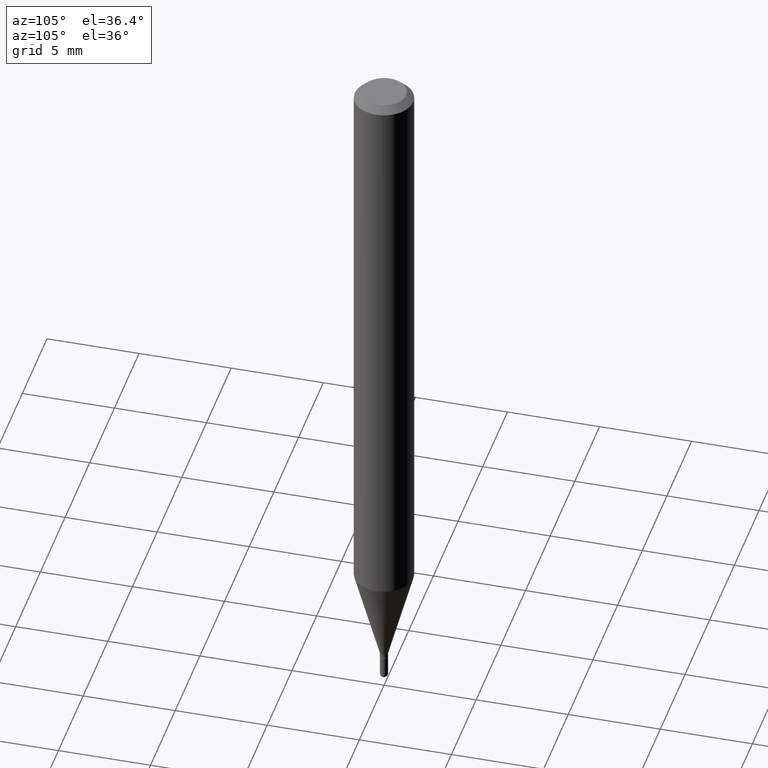
[diagram: clean part render]
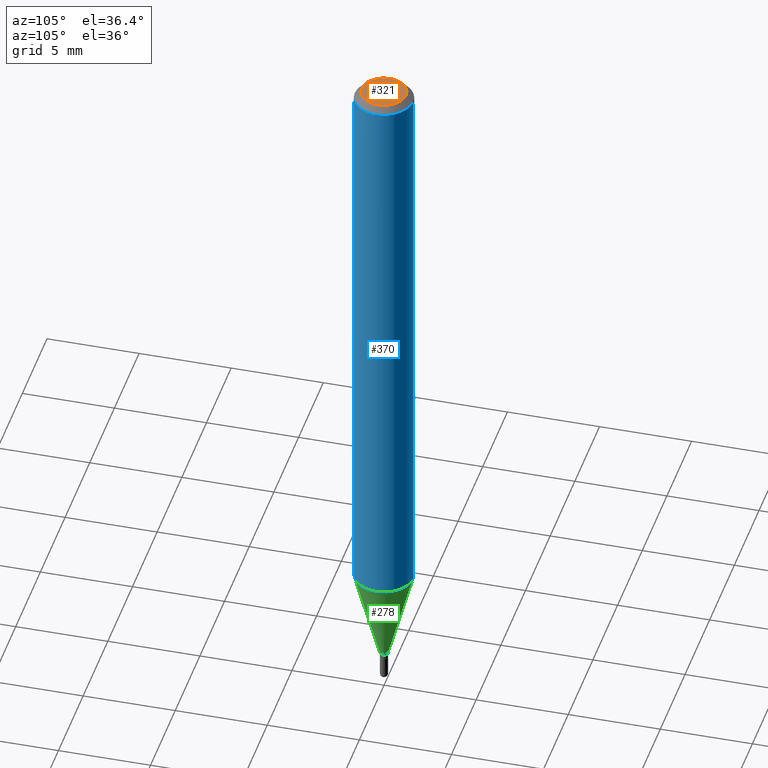
[diagram: same view with three faces highlighted in distinct colors, each labeled with its STEP entity id]
A machine part, auxiliary view with three faces highlighted in distinct colors.
Their STEP definitions:

[orange] entity #321 — the highlighted planar face has unit normal (0, -0, -1).
#18 = AXIS2_PLACEMENT_3D ( 'NONE', #292, #449, #201 ) ;
#79 = EDGE_CURVE ( 'NONE', #347, #496, #219, .T. ) ;
#85 = PLANE ( 'NONE',  #18 ) ;
#99 = EDGE_LOOP ( 'NONE', ( #424, #168 ) ) ;
#101 = CARTESIAN_POINT ( 'NONE',  ( -3.773273898774340269E-16, -0.04749999999999999362, 1.569853956734031529E-16 ) ) ;
#108 = AXIS2_PLACEMENT_3D ( 'NONE', #248, #151, #475 ) ;
#123 = CARTESIAN_POINT ( 'NONE',  ( 3.840629472727447874E-16, 0.04749999999999999362, -1.747056831868805383E-16 ) ) ;
#127 = DIRECTION ( 'NONE',  ( -6.982962677686266711E-15, -1.000000000000000000, 3.491485040634565991E-15 ) ) ;
#151 = DIRECTION ( 'NONE',  ( -2.445466221238004256E-29, 3.491485040634565202E-15, 1.000000000000000000 ) ) ;
#168 = ORIENTED_EDGE ( 'NONE', *, *, #269, .T. ) ;
#201 = DIRECTION ( 'NONE',  ( 6.982962677686265922E-15, 1.000000000000000000, -3.491485040634565202E-15 ) ) ;
#219 = CIRCLE ( 'NONE', #108, 0.04749999999999999362 ) ;
#248 = CARTESIAN_POINT ( 'NONE',  ( 2.166718227241722488E-46, -3.093505938452482388E-32, -8.860143756738675731E-18 ) ) ;
#269 = EDGE_CURVE ( 'NONE', #496, #347, #480, .T. ) ;
#292 = CARTESIAN_POINT ( 'NONE',  ( 3.316907271900976096E-16, 0.04749999999999999362, -1.702756113085111488E-16 ) ) ;
#317 = AXIS2_PLACEMENT_3D ( 'NONE', #369, #364, #127 ) ;
#321 = ADVANCED_FACE ( 'NONE', ( #328 ), #85, .F. ) ;
#328 = FACE_OUTER_BOUND ( 'NONE', #99, .T. ) ;
#347 = VERTEX_POINT ( 'NONE', #123 ) ;
#364 = DIRECTION ( 'NONE',  ( -2.445466221238004256E-29, 3.491485040634565202E-15, 1.000000000000000000 ) ) ;
#369 = CARTESIAN_POINT ( 'NONE',  ( 2.166718227241722488E-46, -3.093505938452482388E-32, -8.860143756738675731E-18 ) ) ;
#424 = ORIENTED_EDGE ( 'NONE', *, *, #79, .T. ) ;
#449 = DIRECTION ( 'NONE',  ( 2.445466221238003976E-29, -3.491485040634565202E-15, -1.000000000000000000 ) ) ;
#475 = DIRECTION ( 'NONE',  ( -6.982962677686266711E-15, -1.000000000000000000, 3.491485040634565991E-15 ) ) ;
#480 = CIRCLE ( 'NONE', #317, 0.04749999999999999362 ) ;
#496 = VERTEX_POINT ( 'NONE', #101 ) ;

[blue] entity #370 — the highlighted cylindrical surface (edge-blend (fillet) strip) has radius 1.5875 mm, axis along (-0, 0, 1).
#6 = VECTOR ( 'NONE', #352, 39.37007874015748143 ) ;
#17 = EDGE_LOOP ( 'NONE', ( #333, #51, #376, #87 ) ) ;
#22 = DIRECTION ( 'NONE',  ( -6.982962677686265922E-15, -1.000000000000000000, 4.370956789862821150E-15 ) ) ;
#26 = EDGE_CURVE ( 'NONE', #489, #290, #323, .T. ) ;
#49 = CARTESIAN_POINT ( 'NONE',  ( 3.668199331857008749E-31, -5.237227560951850416E-17, -0.01500000000000000812 ) ) ;
#51 = ORIENTED_EDGE ( 'NONE', *, *, #239, .T. ) ;
#55 = FACE_OUTER_BOUND ( 'NONE', #17, .T. ) ;
#87 = ORIENTED_EDGE ( 'NONE', *, *, #166, .F. ) ;
#113 = DIRECTION ( 'NONE',  ( -2.445466221238004536E-29, 3.491485040634565202E-15, 1.000000000000000000 ) ) ;
#116 = CARTESIAN_POINT ( 'NONE',  ( -4.364351673553912750E-16, -0.06250000000000005551, -0.01499999999999979128 ) ) ;
#129 = CARTESIAN_POINT ( 'NONE',  ( 4.440892098500927901E-16, 0.06249999999999569095, -1.237469256391281691 ) ) ;
#166 = EDGE_CURVE ( 'NONE', #489, #253, #277, .T. ) ;
#195 = LINE ( 'NONE', #236, #6 ) ;
#205 = DIRECTION ( 'NONE',  ( -2.445466221238004256E-29, 3.491485040634565202E-15, 1.000000000000000000 ) ) ;
#211 = CARTESIAN_POINT ( 'NONE',  ( 3.026189266325389991E-29, -4.320605396935337558E-15, -1.237469256391281247 ) ) ;
#236 = CARTESIAN_POINT ( 'NONE',  ( 4.440892098500625669E-16, 0.06250000000000000000, -2.182178150396603251E-16 ) ) ;
#239 = EDGE_CURVE ( 'NONE', #290, #381, #195, .T. ) ;
#250 = CYLINDRICAL_SURFACE ( 'NONE', #406, 0.06250000000000000000 ) ;
#253 = VERTEX_POINT ( 'NONE', #116 ) ;
#257 = CARTESIAN_POINT ( 'NONE',  ( 4.440892098500930859E-16, 0.06249999999999995143, -0.01500000000000022669 ) ) ;
#263 = CIRCLE ( 'NONE', #276, 0.06250000000000000000 ) ;
#270 = EDGE_CURVE ( 'NONE', #253, #381, #263, .T. ) ;
#276 = AXIS2_PLACEMENT_3D ( 'NONE', #49, #286, #482 ) ;
#277 = LINE ( 'NONE', #349, #459 ) ;
#286 = DIRECTION ( 'NONE',  ( -2.445466221238004256E-29, 3.491485040634565202E-15, 1.000000000000000000 ) ) ;
#288 = AXIS2_PLACEMENT_3D ( 'NONE', #211, #335, #22 ) ;
#290 = VERTEX_POINT ( 'NONE', #129 ) ;
#323 = CIRCLE ( 'NONE', #288, 0.06250000000000000000 ) ;
#333 = ORIENTED_EDGE ( 'NONE', *, *, #26, .T. ) ;
#335 = DIRECTION ( 'NONE',  ( -2.445466221238004256E-29, 3.491485040634565202E-15, 1.000000000000000000 ) ) ;
#349 = CARTESIAN_POINT ( 'NONE',  ( -4.364351673553916201E-16, -0.06250000000000000000, 2.182178150396603251E-16 ) ) ;
#352 = DIRECTION ( 'NONE',  ( -2.445466221238004536E-29, 3.491485040634565202E-15, 1.000000000000000000 ) ) ;
#366 = DIRECTION ( 'NONE',  ( -6.982962677686265922E-15, -1.000000000000000000, 3.491485040634565202E-15 ) ) ;
#370 = ADVANCED_FACE ( 'NONE', ( #55 ), #250, .T. ) ;
#376 = ORIENTED_EDGE ( 'NONE', *, *, #270, .F. ) ;
#381 = VERTEX_POINT ( 'NONE', #257 ) ;
#406 = AXIS2_PLACEMENT_3D ( 'NONE', #408, #205, #366 ) ;
#408 = CARTESIAN_POINT ( 'NONE',  ( 0.000000000000000000, 0.000000000000000000, 0.000000000000000000 ) ) ;
#455 = CARTESIAN_POINT ( 'NONE',  ( -4.364351673553615448E-16, -0.06250000000000432987, -1.237469256391281025 ) ) ;
#459 = VECTOR ( 'NONE', #113, 39.37007874015748143 ) ;
#482 = DIRECTION ( 'NONE',  ( -6.982962677686265922E-15, -1.000000000000000000, 3.483106191921935554E-15 ) ) ;
#489 = VERTEX_POINT ( 'NONE', #455 ) ;

[green] entity #278 — the highlighted conical surface has half-angle 15 deg.
#9 = DIRECTION ( 'NONE',  ( -2.445466221238004256E-29, 3.491485040634565202E-15, 1.000000000000000000 ) ) ;
#13 = CARTESIAN_POINT ( 'NONE',  ( -5.935518276029754545E-17, -0.008500000000004949777, -1.439000000000000057 ) ) ;
#15 = ORIENTED_EDGE ( 'NONE', *, *, #80, .T. ) ;
#20 = DIRECTION ( 'NONE',  ( 1.839019923739601893E-15, 0.2588190451025252359, 0.9659258262890670910 ) ) ;
#22 = DIRECTION ( 'NONE',  ( -6.982962677686265922E-15, -1.000000000000000000, 4.370956789862821150E-15 ) ) ;
#26 = EDGE_CURVE ( 'NONE', #489, #290, #323, .T. ) ;
#33 = ORIENTED_EDGE ( 'NONE', *, *, #463, .T. ) ;
#62 = VERTEX_POINT ( 'NONE', #90 ) ;
#68 = CARTESIAN_POINT ( 'NONE',  ( 6.039613253964316839E-17, 0.008499999999994900524, -1.439000000000000057 ) ) ;
#69 = CIRCLE ( 'NONE', #392, 0.008499999999999924283 ) ;
#80 = EDGE_CURVE ( 'NONE', #62, #413, #69, .T. ) ;
#90 = CARTESIAN_POINT ( 'NONE',  ( -5.935518276029754545E-17, -0.008500000000004949777, -1.439000000000000057 ) ) ;
#115 = CARTESIAN_POINT ( 'NONE',  ( 3.519025892361488226E-29, -5.024246973473140091E-15, -1.439000000000000057 ) ) ;
#129 = CARTESIAN_POINT ( 'NONE',  ( 4.440892098500927901E-16, 0.06249999999999569095, -1.237469256391281691 ) ) ;
#136 = EDGE_LOOP ( 'NONE', ( #15, #33, #409, #481 ) ) ;
#203 = DIRECTION ( 'NONE',  ( -1.807323732225331717E-15, -0.2588190451025184080, 0.9659258262890689783 ) ) ;
#211 = CARTESIAN_POINT ( 'NONE',  ( 3.026189266325389991E-29, -4.320605396935337558E-15, -1.237469256391281247 ) ) ;
#240 = DIRECTION ( 'NONE',  ( -6.982962677686266711E-15, -1.000000000000000000, 0.000000000000000000 ) ) ;
#278 = ADVANCED_FACE ( 'NONE', ( #332 ), #448, .T. ) ;
#283 = EDGE_CURVE ( 'NONE', #62, #489, #296, .T. ) ;
#288 = AXIS2_PLACEMENT_3D ( 'NONE', #211, #335, #22 ) ;
#289 = CARTESIAN_POINT ( 'NONE',  ( 3.519025892361488226E-29, -5.024246973473140091E-15, -1.439000000000000057 ) ) ;
#290 = VERTEX_POINT ( 'NONE', #129 ) ;
#296 = LINE ( 'NONE', #13, #362 ) ;
#323 = CIRCLE ( 'NONE', #288, 0.06250000000000000000 ) ;
#332 = FACE_OUTER_BOUND ( 'NONE', #136, .T. ) ;
#335 = DIRECTION ( 'NONE',  ( -2.445466221238004256E-29, 3.491485040634565202E-15, 1.000000000000000000 ) ) ;
#362 = VECTOR ( 'NONE', #203, 39.37007874015748854 ) ;
#382 = LINE ( 'NONE', #68, #395 ) ;
#392 = AXIS2_PLACEMENT_3D ( 'NONE', #115, #394, #240 ) ;
#394 = DIRECTION ( 'NONE',  ( -2.445466221238004256E-29, 3.491485040634565202E-15, 1.000000000000000000 ) ) ;
#395 = VECTOR ( 'NONE', #20, 39.37007874015748854 ) ;
#409 = ORIENTED_EDGE ( 'NONE', *, *, #26, .F. ) ;
#413 = VERTEX_POINT ( 'NONE', #422 ) ;
#422 = CARTESIAN_POINT ( 'NONE',  ( 2.522426711948681826E-16, 0.008499999999994900524, -1.439000000000000057 ) ) ;
#448 = CONICAL_SURFACE ( 'NONE', #511, 0.008499999999999924283, 0.2617993877991505181 ) ;
#455 = CARTESIAN_POINT ( 'NONE',  ( -4.364351673553615448E-16, -0.06250000000000432987, -1.237469256391281025 ) ) ;
#463 = EDGE_CURVE ( 'NONE', #413, #290, #382, .T. ) ;
#481 = ORIENTED_EDGE ( 'NONE', *, *, #283, .F. ) ;
#489 = VERTEX_POINT ( 'NONE', #455 ) ;
#493 = DIRECTION ( 'NONE',  ( -6.982962677686266711E-15, -1.000000000000000000, 0.000000000000000000 ) ) ;
#511 = AXIS2_PLACEMENT_3D ( 'NONE', #289, #9, #493 ) ;